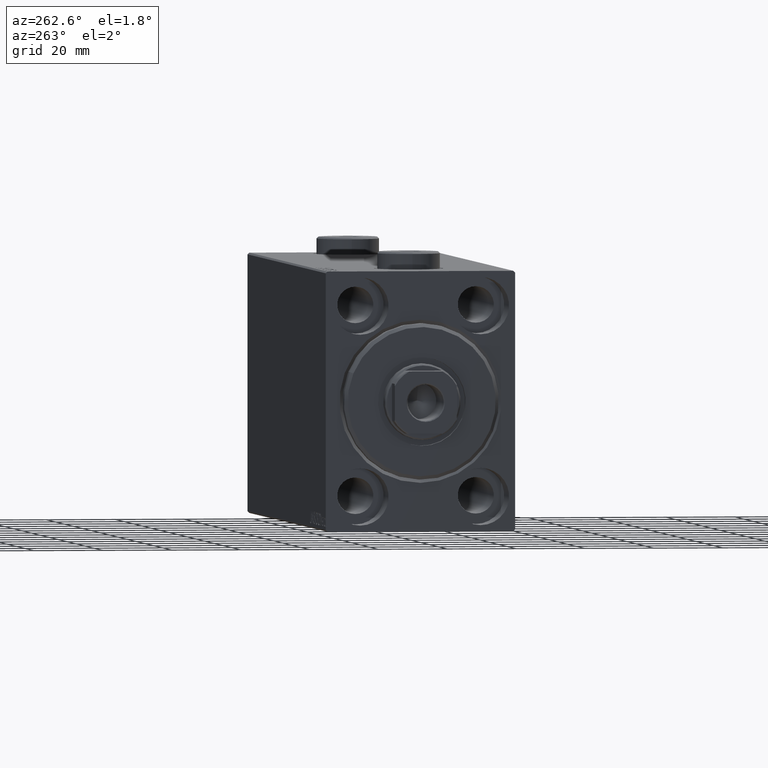
[diagram: clean part render]
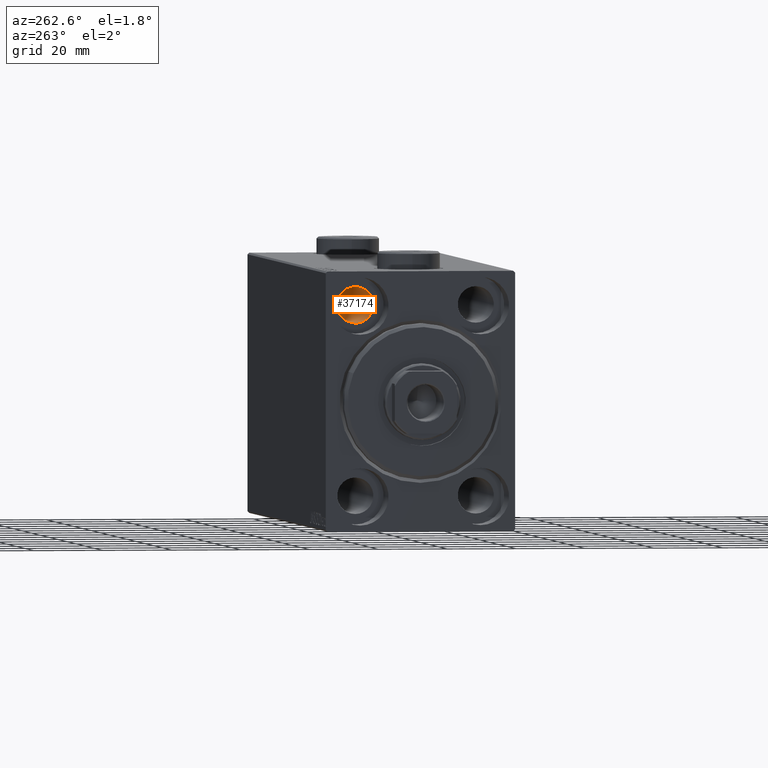
[diagram: same view with one face highlighted and labeled with its STEP entity id]
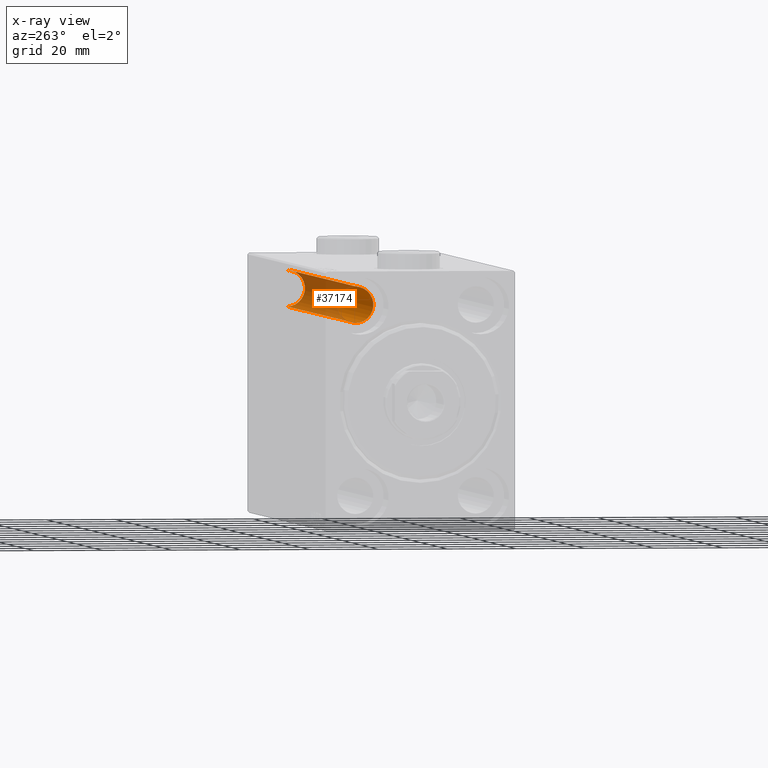
[diagram: x-ray of the same camera — body ghosted, the highlighted face saturated]
A machine part, auxiliary view. The second image highlights one B-rep face of the part: STEP entity #37174.
The next image is the same camera in x-ray: the body ghosted, the highlighted face saturated — about 59% of this face is hidden behind the body in this view.
In plain terms, the highlighted cylindrical surface (edge-blend (fillet) strip) has radius 5.25 mm, axis along (-1, -0, -0).
Its self-contained STEP definition (entity closure, byte-faithful):
#675 = FACE_OUTER_BOUND ( 'NONE', #40768, .T. ) ;
#937 = CIRCLE ( 'NONE', #17712, 5.249999999999997335 ) ;
#1944 = ORIENTED_EDGE ( 'NONE', *, *, #25886, .F. ) ;
#2558 = CARTESIAN_POINT ( 'NONE',  ( 163.9999999999999716, 17.50000000000000355, 27.49999999999999645 ) ) ;
#4116 = DIRECTION ( 'NONE',  ( -1.000000000000000000, -0.000000000000000000, -0.000000000000000000 ) ) ;
#5401 = VERTEX_POINT ( 'NONE', #41485 ) ;
#6030 = DIRECTION ( 'NONE',  ( -1.000000000000000000, -0.000000000000000000, -0.000000000000000000 ) ) ;
#6670 = DIRECTION ( 'NONE',  ( -1.000000000000000000, -0.000000000000000000, -0.000000000000000000 ) ) ;
#7597 = CARTESIAN_POINT ( 'NONE',  ( 163.9999999999999716, 17.50000000000000355, 22.25000000000000000 ) ) ;
#10975 = CYLINDRICAL_SURFACE ( 'NONE', #14071, 5.249999999999997335 ) ;
#12433 = LINE ( 'NONE', #26601, #42264 ) ;
#12761 = CARTESIAN_POINT ( 'NONE',  ( 11.00000000000001066, 17.50000000000000355, 27.49999999999999645 ) ) ;
#13069 = DIRECTION ( 'NONE',  ( 0.000000000000000000, 0.000000000000000000, -1.000000000000000000 ) ) ;
#14071 = AXIS2_PLACEMENT_3D ( 'NONE', #24915, #4116, #18054 ) ;
#16280 = DIRECTION ( 'NONE',  ( -1.000000000000000000, -0.000000000000000000, -0.000000000000000000 ) ) ;
#16305 = CARTESIAN_POINT ( 'NONE',  ( 175.0000000000000000, 17.50000000000000355, 22.25000000000000000 ) ) ;
#16340 = VERTEX_POINT ( 'NONE', #19307 ) ;
#16564 = VERTEX_POINT ( 'NONE', #37676 ) ;
#17712 = AXIS2_PLACEMENT_3D ( 'NONE', #12761, #26693, #40613 ) ;
#18054 = DIRECTION ( 'NONE',  ( 0.000000000000000000, 0.000000000000000000, 1.000000000000000000 ) ) ;
#18312 = ORIENTED_EDGE ( 'NONE', *, *, #32516, .T. ) ;
#19307 = CARTESIAN_POINT ( 'NONE',  ( 11.00000000000001066, 17.50000000000000355, 22.25000000000000000 ) ) ;
#19719 = LINE ( 'NONE', #16305, #19755 ) ;
#19755 = VECTOR ( 'NONE', #6670, 1000.000000000000000 ) ;
#24797 = AXIS2_PLACEMENT_3D ( 'NONE', #2558, #16280, #13069 ) ;
#24915 = CARTESIAN_POINT ( 'NONE',  ( 175.0000000000000000, 17.50000000000000355, 27.49999999999999645 ) ) ;
#25886 = EDGE_CURVE ( 'NONE', #31665, #5401, #36473, .T. ) ;
#26601 = CARTESIAN_POINT ( 'NONE',  ( 175.0000000000000000, 17.50000000000000355, 32.74999999999999289 ) ) ;
#26693 = DIRECTION ( 'NONE',  ( -1.000000000000000000, 0.000000000000000000, 0.000000000000000000 ) ) ;
#28579 = EDGE_CURVE ( 'NONE', #5401, #16564, #12433, .T. ) ;
#31665 = VERTEX_POINT ( 'NONE', #7597 ) ;
#32516 = EDGE_CURVE ( 'NONE', #31665, #16340, #19719, .T. ) ;
#33146 = ORIENTED_EDGE ( 'NONE', *, *, #38088, .T. ) ;
#36473 = CIRCLE ( 'NONE', #24797, 5.249999999999997335 ) ;
#37174 = ADVANCED_FACE ( 'NONE', ( #675 ), #10975, .F. ) ;
#37676 = CARTESIAN_POINT ( 'NONE',  ( 11.00000000000001066, 17.50000000000000355, 32.74999999999999289 ) ) ;
#38088 = EDGE_CURVE ( 'NONE', #16340, #16564, #937, .T. ) ;
#40613 = DIRECTION ( 'NONE',  ( 0.000000000000000000, 0.000000000000000000, 1.000000000000000000 ) ) ;
#40768 = EDGE_LOOP ( 'NONE', ( #1944, #18312, #33146, #43303 ) ) ;
#41485 = CARTESIAN_POINT ( 'NONE',  ( 163.9999999999999716, 17.50000000000000355, 32.74999999999999289 ) ) ;
#42264 = VECTOR ( 'NONE', #6030, 1000.000000000000000 ) ;
#43303 = ORIENTED_EDGE ( 'NONE', *, *, #28579, .F. ) ;